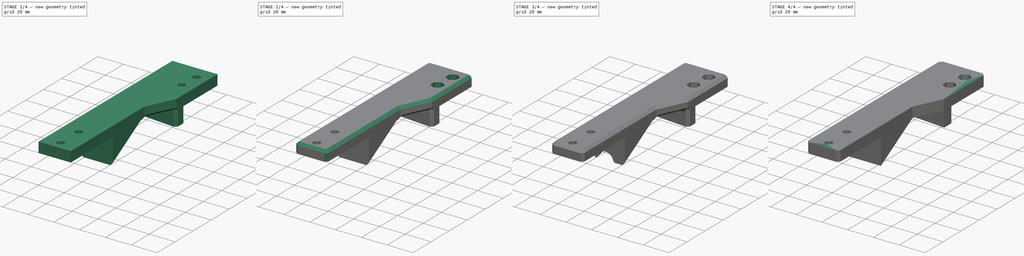
[diagram: build sequence overview — one tinted view per stage of 4, left to right]
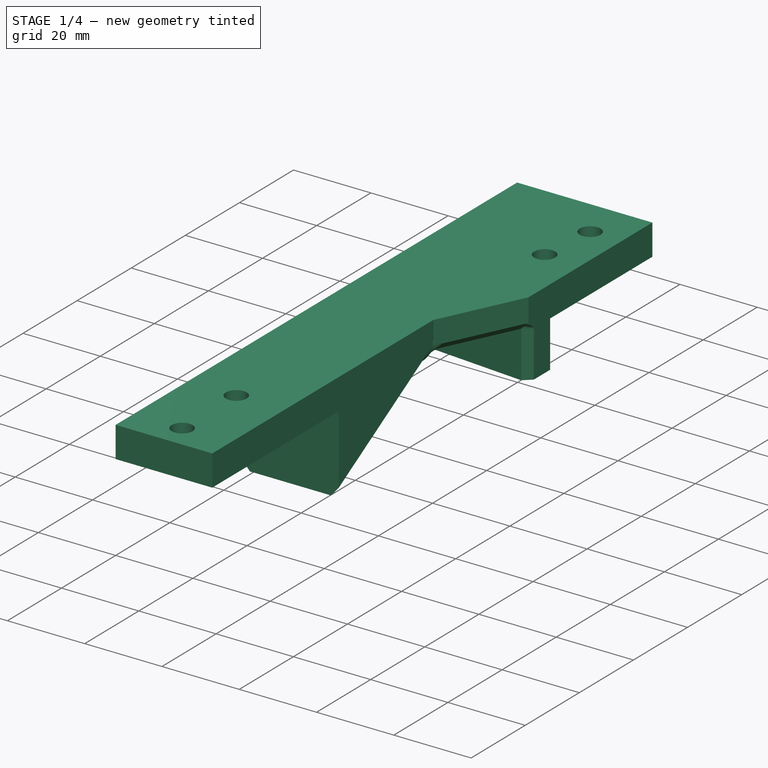
[diagram: stage 1 of 4 — iso view after this stage's code; geometry added in this stage tinted green]
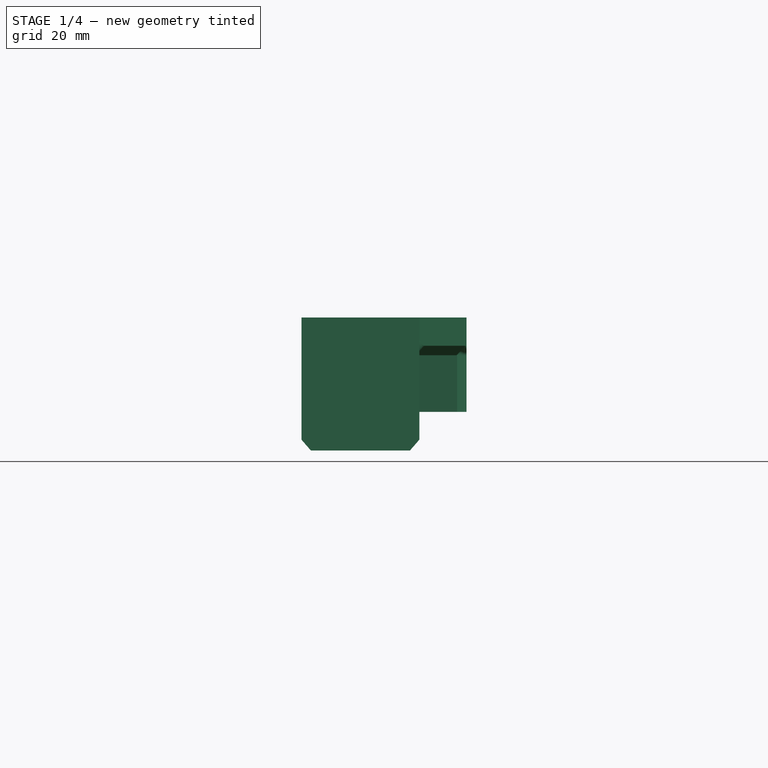
[diagram: stage 1 of 4 — front view after this stage's code; geometry added in this stage tinted green]
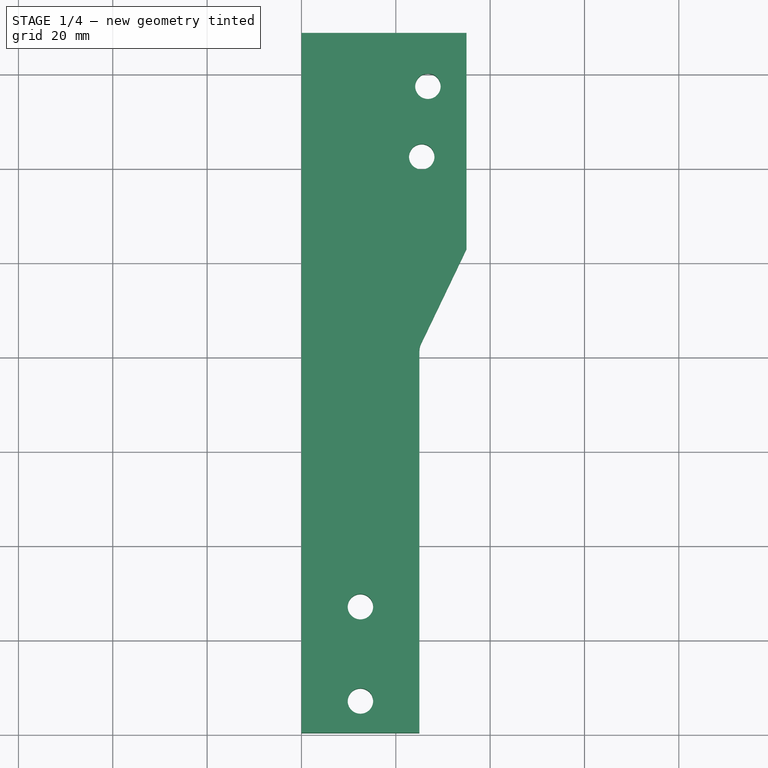
[diagram: stage 1 of 4 — top view after this stage's code; geometry added in this stage tinted green]
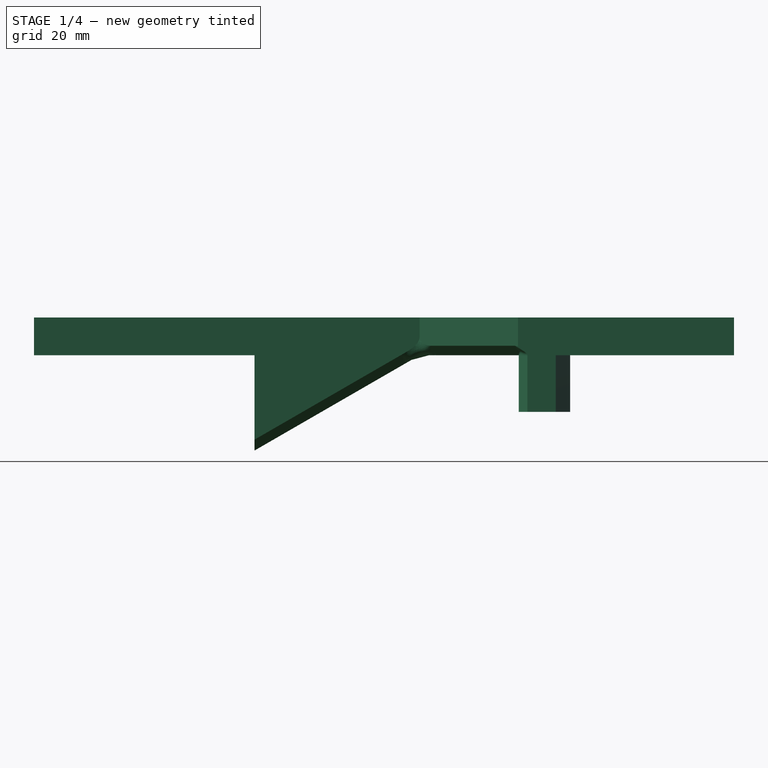
[diagram: stage 1 of 4 — right view after this stage's code; geometry added in this stage tinted green]
FCSTD DOCUMENT  (FreeCAD 0.19R24276 (Git))
Label: front-drag-chain-mount
License: All rights reserved
LicenseURL: http://en.wikipedia.org/wiki/All_rights_reserved
objects: Sketcher::SketchObject×7, PartDesign::Chamfer×7, PartDesign::Pocket×4, PartDesign::Pad×3, PartDesign::Plane×3, PartDesign::Body×1
note: 39 computed .brp shape members not serialized (recipe doc carries the construction recipe); baked Part::Feature solids carry a one-line shape summary decoded from their .brp

FEATURE [Sketcher::SketchObject] Sketch
  FullyConstrained = true
  MapMode = 5
  Support = -> [XY_Plane]
  sketch-geometry (18):
    g0: LineSegment StartX=0 StartY=0 StartZ=0 EndX=25 EndY=0 EndZ=0
    g1: LineSegment StartX=25 StartY=0 StartZ=0 EndX=25 EndY=81.75 EndZ=0
    g2: LineSegment StartX=25 StartY=81.75 StartZ=0 EndX=0 EndY=81.75 EndZ=0
    g3: LineSegment StartX=0 StartY=148.4 StartZ=0 EndX=0 EndY=0 EndZ=0
    g4: LineSegment StartX=0 StartY=148.4 StartZ=0 EndX=35 EndY=148.4 EndZ=0
    g5: LineSegment StartX=35 StartY=148.4 StartZ=0 EndX=35 EndY=102.6 EndZ=0
    g6: LineSegment StartX=35 StartY=102.6 StartZ=0 EndX=0 EndY=105.662 EndZ=0
    g7: LineSegment StartX=35 StartY=110.6 StartZ=0 EndX=0 EndY=113.662 EndZ=0
    g8: ArcOfCircle CenterX=51.7361 CenterY=81.75 CenterZ=0 NormalX=0 NormalY=0 NormalZ=1 AngleXU=0 Radius=26.7361 StartAngle=2.24718 EndAngle=3.14159
    g9: LineSegment StartX=0 StartY=46.75 StartZ=0 EndX=25 EndY=46.75 EndZ=0
    g10: Circle CenterX=12.5 CenterY=6.75 CenterZ=0 NormalX=0 NormalY=0 NormalZ=1 AngleXU=0 Radius=2.7
    g11: Circle CenterX=12.5 CenterY=26.75 CenterZ=0 NormalX=0 NormalY=0 NormalZ=1 AngleXU=0 Radius=2.7
    g12: GeomPoint X=12.5 Y=0 Z=0
    g13: Circle CenterX=25.5 CenterY=122.15 CenterZ=0 NormalX=0 NormalY=0 NormalZ=1 AngleXU=0 Radius=2.7
    g14: Circle CenterX=26.8073 CenterY=137.093 CenterZ=0 NormalX=0 NormalY=0 NormalZ=1 AngleXU=0 Radius=2.7
    g15: LineSegment StartX=25.5 StartY=122.15 StartZ=0 EndX=26.8073 EndY=137.093 EndZ=0
    g16: LineSegment StartX=25 StartY=81.75 StartZ=0 EndX=35 EndY=102.6 EndZ=0
    g17: LineSegment StartX=0 StartY=26.75 StartZ=0 EndX=25 EndY=26.75 EndZ=0
  constraints (54):
    c: Coincident(g0,g1)
    c: Coincident(g1,g2)
    c: Coincident(g3,g0)
    c: Horizontal(g0)
    c: Horizontal(g2)
    c: Vertical(g1)
    c: Coincident(g4,g3)
    c: Horizontal(g4)
    c: Coincident(g5,g4)
    c: Vertical(g5)
    c: DistanceX(g0,g0) = 25
    c: DistanceX(g3,g4) = 35
    c: DistanceY(g2,g3) = 66.65
    c: Coincident(g6,g5)
    c: PointOnObject(g6,g3)
    c: DistanceY(g5,g4) = 45.8
    c: Angle(g5,g6) = 1.48353
    c: PointOnObject(g7,g5)
    c: PointOnObject(g7,g3)
    c: Parallel(g7,g6)
    c: Distance(g7,g6) = 8
    c: Coincident(g8,g1)
    c: Coincident(g8,g5)
    c: Horizontal(g8,g1)
    c: Coincident(g0,g-1)
    c: PointOnObject(g9,g1)
    c: Horizontal(g9)
    c: DistanceY(g9,g1) = 35
    c: Vertical(g10,g11)
    c: Equal(g10,g11)
    c: Distance(g11,g10) = 20
    c: DistanceY(g0,g10) = 6.75
    c: Diameter(g10) = 5.4
    c: Symmetric(g0,g0,g12)
    c: Vertical(g12,g10)
    c: Equal(g13,g14)
    c: Distance(g14,g13) = 15
    c: Equal(g10,g13) = 5.4
    c: Coincident(g15,g13)
    c: Coincident(g15,g14)
    c: Perpendicular(g7,g15)
    c: DistanceY(g0,g2) = 81.75
    c: PointOnObject(g9,g3)
    c: PointOnObject(g2,g3)
    c: DistanceX(g0,g13) = 0.5
    c: DistanceY(g2,g13) = 40.4
    c: Vertical(g3)
    c: Coincident(g16,g1)
    c: Coincident(g16,g5)
    c: PointOnObject(g17,g3)
    c: PointOnObject(g17,g1)
    c: Horizontal(g17)
    c: DistanceY(g0,g17) = 26.75
    c: PointOnObject(g11,g17)
FEATURE [PartDesign::Pad] Pad  label="XY Profile "
  Direction = (1,1,1)
  Length = 8
  Length2 = 100
  Profile = -> Sketch
  Type = 0
FEATURE [Sketcher::SketchObject] Sketch001
  ExternalGeometry = -> [Sketch]
  FullyConstrained = true
  MapMode = 5
  Support = -> [XY_Plane]
  sketch-geometry (18):
    g0: LineSegment StartX=0 StartY=0 StartZ=0 EndX=25 EndY=0 EndZ=0
    g1: LineSegment StartX=25 StartY=0 StartZ=0 EndX=25 EndY=81.75 EndZ=0
    g2: LineSegment StartX=25 StartY=81.75 StartZ=0 EndX=0 EndY=81.75 EndZ=0
    g3: LineSegment StartX=0 StartY=148.4 StartZ=0 EndX=0 EndY=0 EndZ=0
    g4: LineSegment StartX=0 StartY=148.4 StartZ=0 EndX=35 EndY=148.4 EndZ=0
    g5: LineSegment StartX=35 StartY=148.4 StartZ=0 EndX=35 EndY=102.6 EndZ=0
    g6: LineSegment StartX=35 StartY=102.6 StartZ=0 EndX=0 EndY=105.662 EndZ=0
    g7: LineSegment StartX=35 StartY=110.6 StartZ=0 EndX=0 EndY=113.662 EndZ=0
    g8: ArcOfCircle CenterX=51.7361 CenterY=81.75 CenterZ=0 NormalX=0 NormalY=0 NormalZ=1 AngleXU=0 Radius=26.7361 StartAngle=2.24718 EndAngle=3.14159
    g9: LineSegment StartX=0 StartY=46.75 StartZ=0 EndX=25 EndY=46.75 EndZ=0
    g10: Circle CenterX=12.5 CenterY=10 CenterZ=0 NormalX=0 NormalY=0 NormalZ=1 AngleXU=0 Radius=2.7
    g11: Circle CenterX=12.5 CenterY=35 CenterZ=0 NormalX=0 NormalY=0 NormalZ=1 AngleXU=0 Radius=2.7
    g12: GeomPoint X=12.5 Y=0 Z=0
    g13: Circle CenterX=25.5 CenterY=122.15 CenterZ=0 NormalX=0 NormalY=0 NormalZ=1 AngleXU=0 Radius=2.7
    g14: Circle CenterX=26.8073 CenterY=137.093 CenterZ=0 NormalX=0 NormalY=0 NormalZ=1 AngleXU=0 Radius=2.7
    g15: LineSegment StartX=25.5 StartY=122.15 StartZ=0 EndX=26.8073 EndY=137.093 EndZ=0
    g16: LineSegment StartX=35 StartY=110.6 StartZ=0 EndX=35 EndY=102.6 EndZ=0
    g17: LineSegment StartX=0 StartY=105.662 StartZ=0 EndX=0 EndY=113.662 EndZ=0
  constraints (51):
    c: Coincident(g0,g1)
    c: Coincident(g1,g2)
    c: Coincident(g3,g0)
    c: Horizontal(g0)
    c: Horizontal(g2)
    c: Vertical(g1)
    c: Coincident(g4,g3)
    c: Horizontal(g4)
    c: Coincident(g5,g4)
    c: Vertical(g5)
    c: DistanceX(g0,g0) = 25
    c: DistanceX(g3,g4) = 35
    c: DistanceY(g2,g3) = 66.65
    c: Coincident(g6,g5)
    c: PointOnObject(g6,g3)
    c: DistanceY(g5,g4) = 45.8
    c: Angle(g5,g6) = 1.48353
    c: PointOnObject(g7,g5)
    c: PointOnObject(g7,g3)
    c: Parallel(g7,g6)
    c: Distance(g7,g6) = 8
    c: Coincident(g8,g1)
    c: Coincident(g8,g5)
    c: Horizontal(g8,g1)
    c: Coincident(g0,g-1)
    c: PointOnObject(g9,g1)
    c: Horizontal(g9)
    c: DistanceY(g9,g1) = 35
    c: Vertical(g10,g11)
    c: Equal(g10,g11)
    c: Distance(g11,g10) = 25
    c: DistanceY(g0,g10) = 10
    c: Diameter(g10) = 5.4
    c: Symmetric(g0,g0,g12)
    c: Vertical(g12,g10)
    c: Equal(g13,g14)
    c: Distance(g14,g13) = 15
    c: Equal(g10,g13) = 5.4
    c: Coincident(g15,g13)
    c: Coincident(g15,g14)
    c: Perpendicular(g7,g15)
    c: DistanceY(g0,g2) = 81.75
    c: PointOnObject(g9,g3)
    c: PointOnObject(g2,g3)
    c: DistanceX(g0,g13) = 0.5
    c: DistanceY(g2,g13) = 40.4
    c: Vertical(g3)
    c: Coincident(g16,g7)
    c: Coincident(g16,g6)
    c: Coincident(g17,g6)
    c: Coincident(g17,g7)
FEATURE [PartDesign::Pad] Pad001  label="Drag Chain Mount Resting Support"
  BaseFeature = -> Pad
  Direction = (1,1,1)
  Length = 12
  Length2 = 100
  Profile = -> Sketch001
  Reversed = true
  Type = 0
FEATURE [Sketcher::SketchObject] Sketch002
  FullyConstrained = true
  MapMode = 5
  Support = -> [XY_Plane]
  sketch-geometry (18):
    g0: LineSegment StartX=0 StartY=0 StartZ=0 EndX=25 EndY=0 EndZ=0
    g1: LineSegment StartX=25 StartY=0 StartZ=0 EndX=25 EndY=81.75 EndZ=0
    g2: LineSegment StartX=25 StartY=81.75 StartZ=0 EndX=0 EndY=81.75 EndZ=0
    g3: LineSegment StartX=0 StartY=148.4 StartZ=0 EndX=0 EndY=0 EndZ=0
    g4: LineSegment StartX=0 StartY=148.4 StartZ=0 EndX=35 EndY=148.4 EndZ=0
    g5: LineSegment StartX=35 StartY=148.4 StartZ=0 EndX=35 EndY=102.6 EndZ=0
    g6: LineSegment StartX=35 StartY=102.6 StartZ=0 EndX=0 EndY=105.662 EndZ=0
    g7: LineSegment StartX=35 StartY=110.6 StartZ=0 EndX=0 EndY=113.662 EndZ=0
    g8: ArcOfCircle CenterX=51.7361 CenterY=81.75 CenterZ=0 NormalX=0 NormalY=0 NormalZ=1 AngleXU=0 Radius=26.7361 StartAngle=2.24718 EndAngle=3.14159
    g9: LineSegment StartX=0 StartY=46.75 StartZ=0 EndX=25 EndY=46.75 EndZ=0
    g10: Circle CenterX=12.5 CenterY=10 CenterZ=0 NormalX=0 NormalY=0 NormalZ=1 AngleXU=0 Radius=2.7
    g11: Circle CenterX=12.5 CenterY=35 CenterZ=0 NormalX=0 NormalY=0 NormalZ=1 AngleXU=0 Radius=2.7
    g12: GeomPoint X=12.5 Y=0 Z=0
    g13: Circle CenterX=25.5 CenterY=122.15 CenterZ=0 NormalX=0 NormalY=0 NormalZ=1 AngleXU=0 Radius=2.7
    g14: Circle CenterX=26.8073 CenterY=137.093 CenterZ=0 NormalX=0 NormalY=0 NormalZ=1 AngleXU=0 Radius=2.7
    g15: LineSegment StartX=25.5 StartY=122.15 StartZ=0 EndX=26.8073 EndY=137.093 EndZ=0
    g16: LineSegment StartX=35 StartY=110.6 StartZ=0 EndX=35 EndY=102.6 EndZ=0
    g17: LineSegment StartX=0 StartY=105.662 StartZ=0 EndX=0 EndY=113.662 EndZ=0
  constraints (51):
    c: Coincident(g0,g1)
    c: Coincident(g1,g2)
    c: Coincident(g3,g0)
    c: Horizontal(g0)
    c: Horizontal(g2)
    c: Vertical(g1)
    c: Coincident(g4,g3)
    c: Horizontal(g4)
    c: Coincident(g5,g4)
    c: Vertical(g5)
    c: DistanceX(g0,g0) = 25
    c: DistanceX(g3,g4) = 35
    c: DistanceY(g2,g3) = 66.65
    c: Coincident(g6,g5)
    c: PointOnObject(g6,g3)
    c: DistanceY(g5,g4) = 45.8
    c: Angle(g5,g6) = 1.48353
    c: PointOnObject(g7,g5)
    c: PointOnObject(g7,g3)
    c: Parallel(g7,g6)
    c: Distance(g7,g6) = 8
    c: Coincident(g8,g1)
    c: Coincident(g8,g5)
    c: Horizontal(g8,g1)
    c: Coincident(g0,g-1)
    c: PointOnObject(g9,g1)
    c: Horizontal(g9)
    c: DistanceY(g9,g1) = 35
    c: Vertical(g10,g11)
    c: Equal(g10,g11)
    c: Distance(g11,g10) = 25
    c: DistanceY(g0,g10) = 10
    c: Diameter(g10) = 5.4
    c: Symmetric(g0,g0,g12)
    c: Vertical(g12,g10)
    c: Equal(g13,g14)
    c: Distance(g14,g13) = 15
    c: Equal(g10,g13) = 5.4
    c: Coincident(g15,g13)
    c: Coincident(g15,g14)
    c: Perpendicular(g7,g15)
    c: DistanceY(g0,g2) = 81.75
    c: PointOnObject(g9,g3)
    c: PointOnObject(g2,g3)
    c: DistanceX(g0,g13) = 0.5
    c: DistanceY(g2,g13) = 40.4
    c: Vertical(g3)
    c: Coincident(g16,g7)
    c: Coincident(g16,g6)
    c: Coincident(g17,g6)
    c: Coincident(g17,g7)
FEATURE [PartDesign::Plane] DatumPlane
  Length = 60
  MapMode = 2
  Placement = pos=(0,0,0) rot=(0.57735,0.57735,0.57735;2.0944rad)
  ResizeMode = 0
  Support = -> [YZ_Plane]
  Width = 60
FEATURE [Sketcher::SketchObject] Sketch003
  ExternalGeometry = -> [Sketch002]
  FullyConstrained = true
  MapMode = 5
  Placement = pos=(0,0,0) rot=(0.57735,0.57735,0.57735;2.0944rad)
  Support = -> [YZ_Plane]
  sketch-geometry (3):
    g0: LineSegment StartX=46.75 StartY=1.3e-14 StartZ=0 EndX=46.75 EndY=-20.2073 EndZ=0
    g1: LineSegment StartX=46.75 StartY=-20.2073 StartZ=0 EndX=81.75 EndY=2.13e-14 EndZ=0
    g2: LineSegment StartX=46.75 StartY=1.3e-14 StartZ=0 EndX=81.75 EndY=2.13e-14 EndZ=0
  constraints (7):
    c: Vertical(g0)
    c: Coincident(g1,g0)
    c: Coincident(g1,g-4)
    c: Coincident(g0,g-3)
    c: Angle(g-1,g1) = 0.523599
    c: Coincident(g2,g0)
    c: Coincident(g2,g1)
FEATURE [PartDesign::Pad] Pad002  label="Top-Side Leg Support Pad"
  BaseFeature = -> Pad001
  Direction = (1,1,1)
  Length = 25
  Length2 = 100
  Profile = -> Sketch003
  Type = 0
FEATURE [PartDesign::Chamfer] Chamfer001
  Angle = 45
  Base = -> Pad002 [Edge39,Edge36,Edge8,Edge42,Edge51,Edge14,Edge37]
  BaseFeature = -> Pad002
  ChamferType = 0
  FlipDirection = false
  Size = 2
  Size2 = 1
  SupportTransform = false
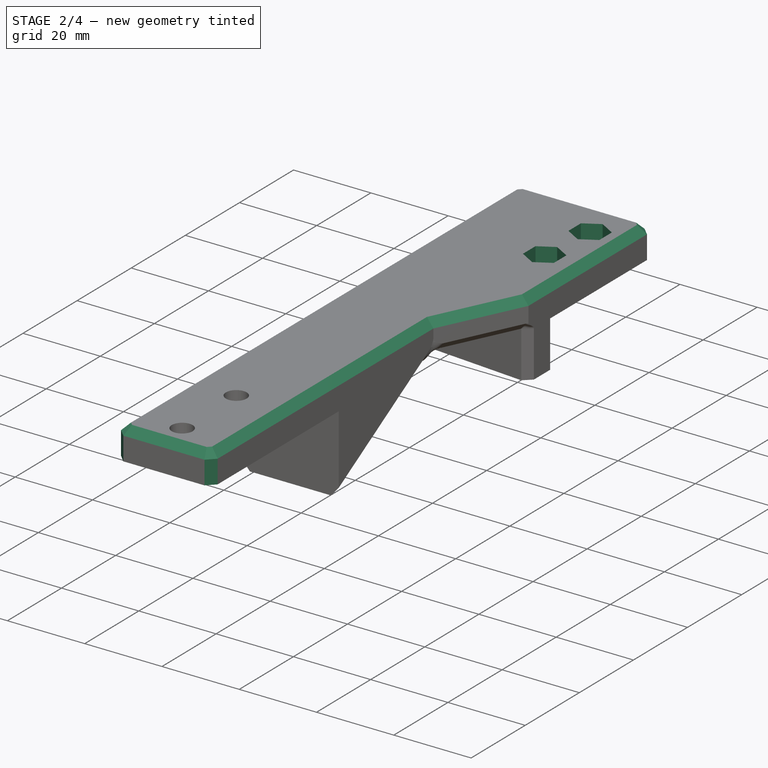
[diagram: stage 2 of 4 — iso view after this stage's code; geometry added in this stage tinted green]
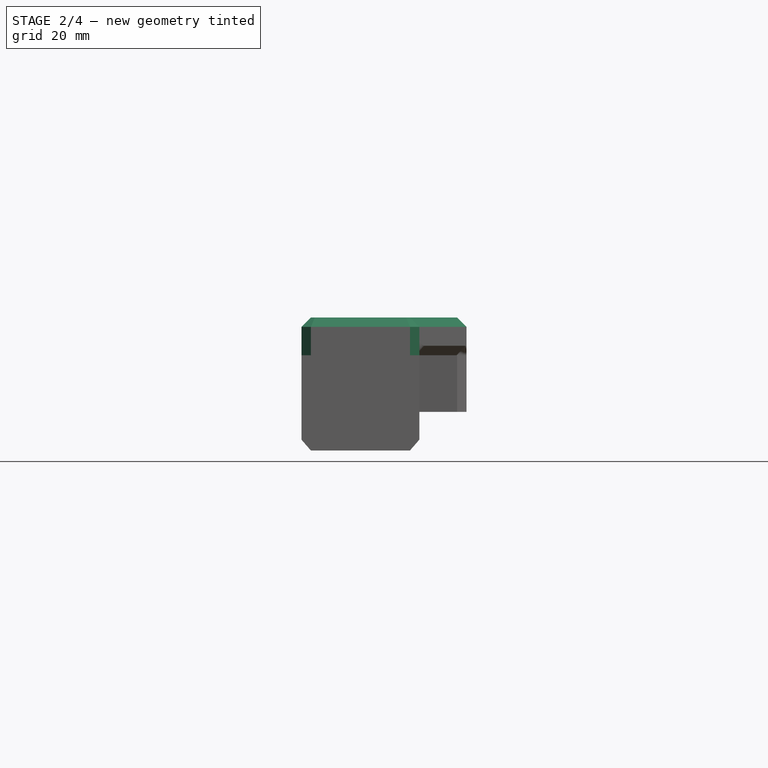
[diagram: stage 2 of 4 — front view after this stage's code; geometry added in this stage tinted green]
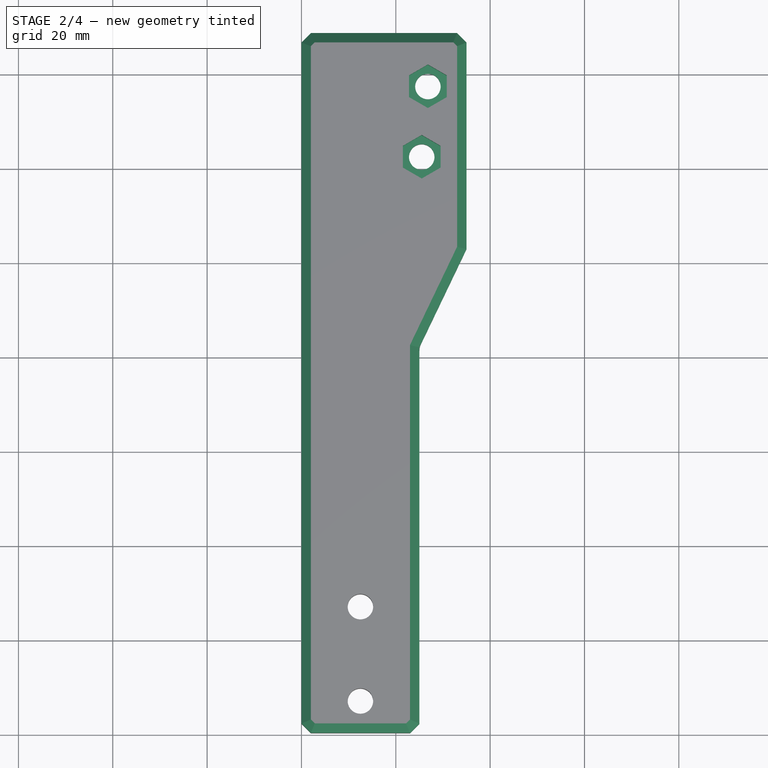
[diagram: stage 2 of 4 — top view after this stage's code; geometry added in this stage tinted green]
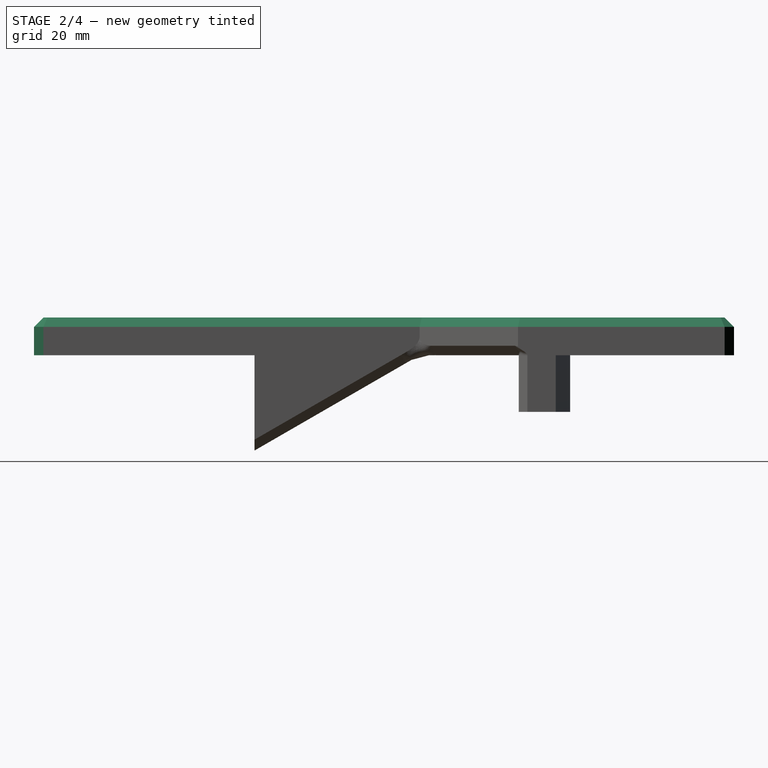
[diagram: stage 2 of 4 — right view after this stage's code; geometry added in this stage tinted green]
FEATURE [PartDesign::Chamfer] Chamfer002
  Angle = 45
  Base = -> Chamfer001 [Edge41,Edge24,Edge5,Edge9,Edge40]
  BaseFeature = -> Chamfer001
  ChamferType = 0
  FlipDirection = false
  Size = 2
  Size2 = 1
  SupportTransform = false
FEATURE [PartDesign::Pocket] Pocket001  label="M5 Hex Nut Recess001"
  BaseFeature = -> Chamfer002
  Length = 4
  Length2 = 100
  Profile = -> Sketch004
  Type = 0
FEATURE [PartDesign::Chamfer] Chamfer003
  Angle = 45
  Base = -> Pocket001 [Edge4,Edge24,Edge26,Edge28,Edge30,Edge29,Edge27,Edge31,Edge25,Edge21]
  BaseFeature = -> Pocket001
  ChamferType = 0
  FlipDirection = false
  Size = 2
  Size2 = 1
  SupportTransform = false
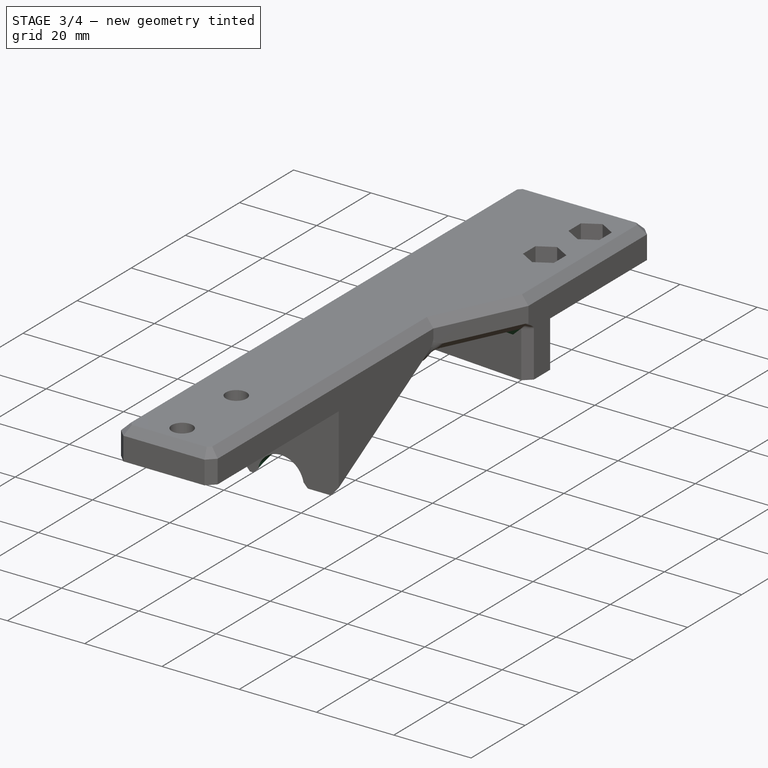
[diagram: stage 3 of 4 — iso view after this stage's code; geometry added in this stage tinted green]
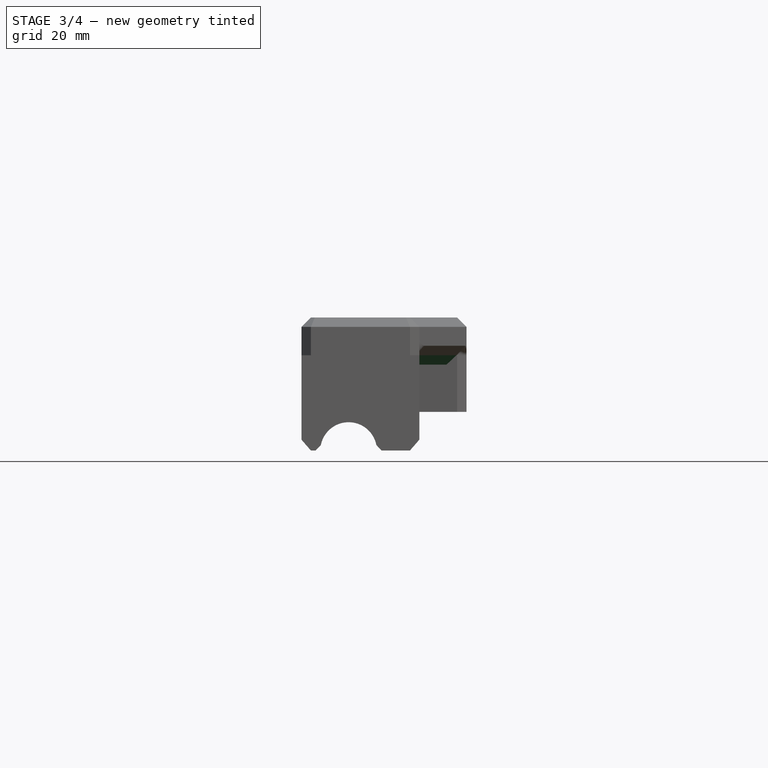
[diagram: stage 3 of 4 — front view after this stage's code; geometry added in this stage tinted green]
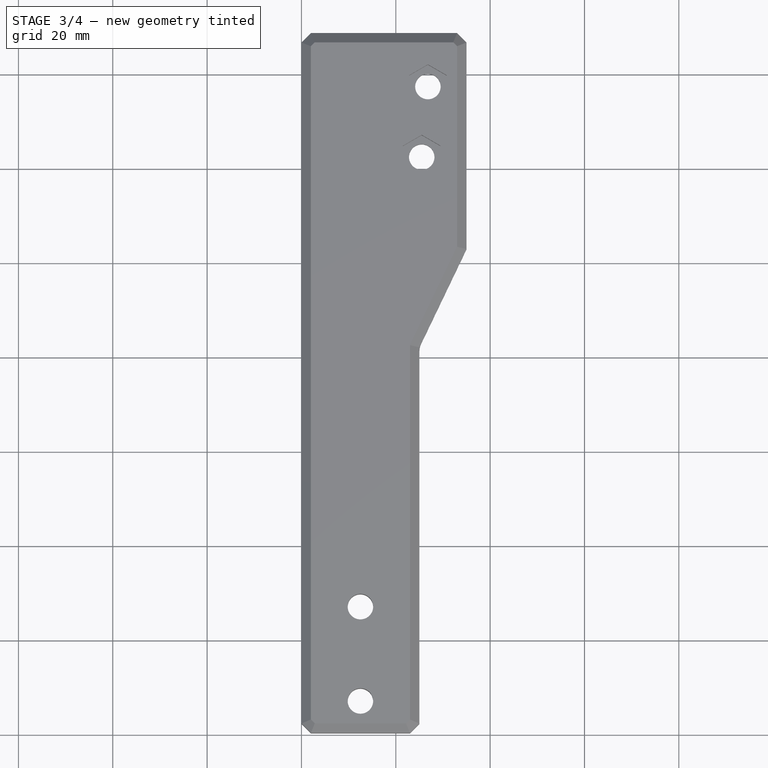
[diagram: stage 3 of 4 — top view after this stage's code; geometry added in this stage tinted green]
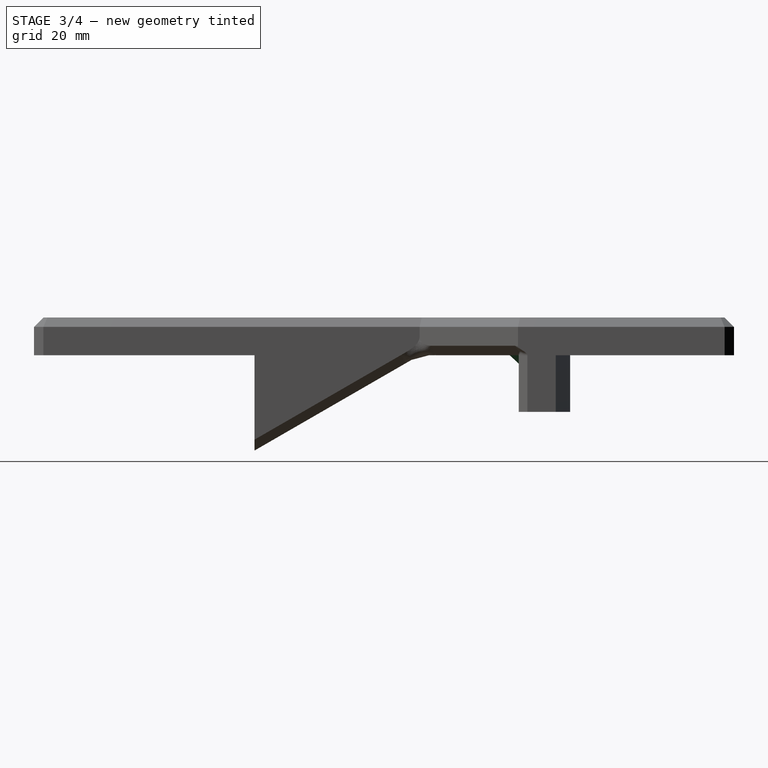
[diagram: stage 3 of 4 — right view after this stage's code; geometry added in this stage tinted green]
FEATURE [PartDesign::Chamfer] Chamfer004
  Angle = 45
  Base = -> Chamfer003 [Edge113]
  BaseFeature = -> Chamfer003
  ChamferType = 0
  FlipDirection = false
  Size = 2
  Size2 = 1
  SupportTransform = false
FEATURE [Sketcher::SketchObject] Sketch005
  ExternalGeometry = -> [Chamfer004]
  FullyConstrained = true
  MapMode = 5
  Placement = pos=(1.03e-14,46.75,-1.03e-14) rot=(1,0,0;1.5708rad)
  Support = -> [Chamfer004]
  sketch-geometry (2):
    g0: Circle CenterX=10 CenterY=-20.2073 CenterZ=0 NormalX=0 NormalY=0 NormalZ=1 AngleXU=0 Radius=6
    g1: GeomPoint X=4 Y=-20.2073 Z=0
  constraints (5):
    c: PointOnObject(g0,g-3)
    c: Diameter(g0) = 12
    c: PointOnObject(g1,g-3)
    c: PointOnObject(g1,g0)
    c: DistanceX(g-4,g1) = 4
FEATURE [PartDesign::Pocket] Pocket002
  BaseFeature = -> Chamfer004
  Length = 15
  Length2 = 100
  Profile = -> Sketch005
  Type = 0
FEATURE [PartDesign::Chamfer] Chamfer005
  Angle = 45
  Base = -> Pocket002 [Edge86]
  BaseFeature = -> Pocket002
  ChamferType = 0
  FlipDirection = false
  Size = 1
  Size2 = 1
  SupportTransform = false
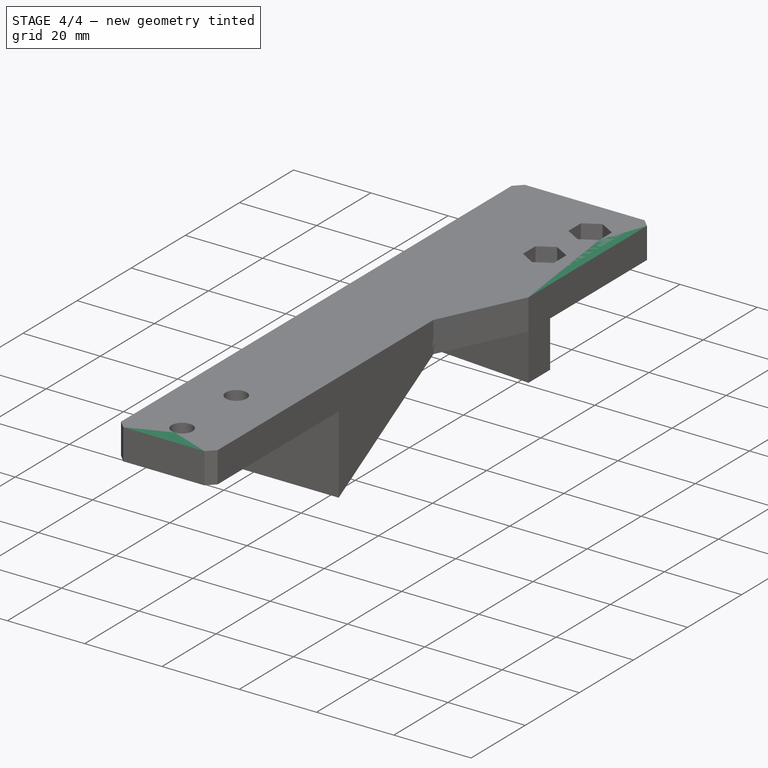
[diagram: stage 4 of 4 — iso view after this stage's code; geometry added in this stage tinted green]
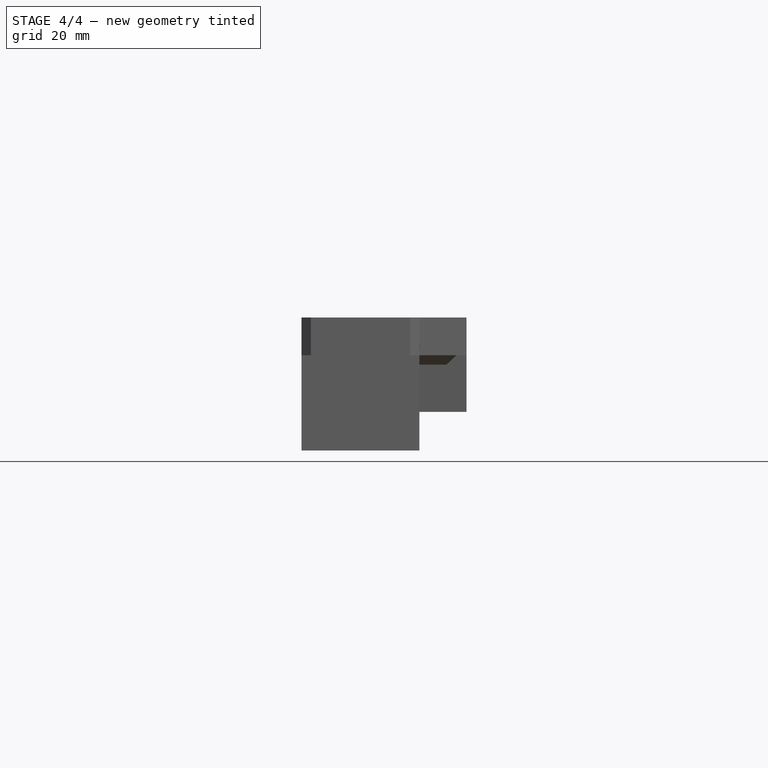
[diagram: stage 4 of 4 — front view after this stage's code; geometry added in this stage tinted green]
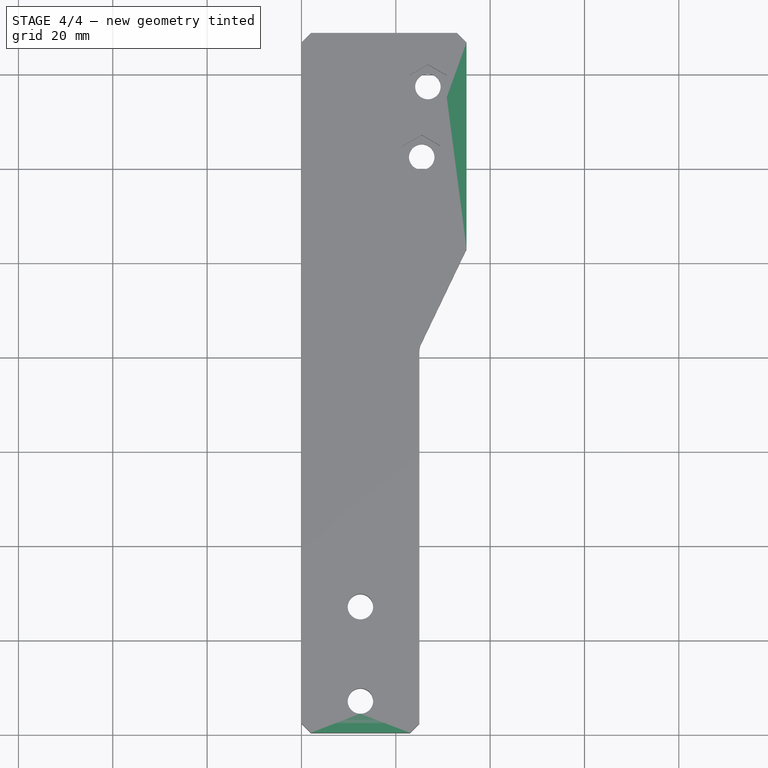
[diagram: stage 4 of 4 — top view after this stage's code; geometry added in this stage tinted green]
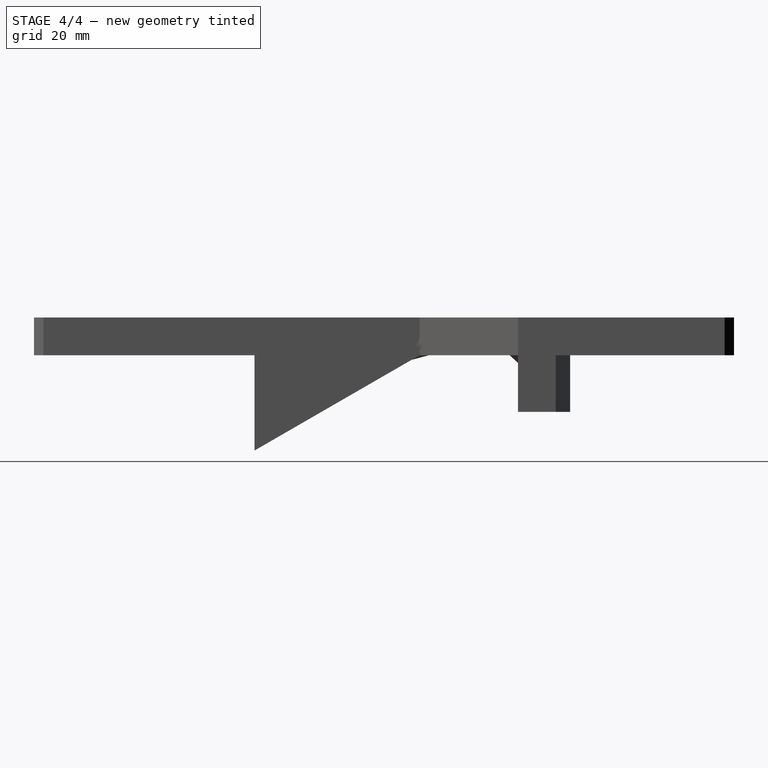
[diagram: stage 4 of 4 — right view after this stage's code; geometry added in this stage tinted green]
FEATURE [PartDesign::Plane] DatumPlane001
  Length = 60
  MapMode = 5
  Placement = pos=(0,0,8) rot=(0,0,1;0rad)
  ResizeMode = 0
  Support = -> [Pad002]
  Width = 60
FEATURE [Sketcher::SketchObject] Sketch004
  ExternalGeometry = -> [Pad002]
  FullyConstrained = true
  MapMode = 5
  Placement = pos=(0,0,8) rot=(0,0,1;0rad)
  Support = -> [DatumPlane001]
  sketch-geometry (14):
    g0: LineSegment StartX=29.5 StartY=124.459 StartZ=0 EndX=25.5 EndY=126.769 EndZ=0
    g1: LineSegment StartX=25.5 StartY=126.769 StartZ=0 EndX=21.5 EndY=124.459 EndZ=0
    g2: LineSegment StartX=21.5 StartY=124.459 StartZ=0 EndX=21.5 EndY=119.841 EndZ=0
    g3: LineSegment StartX=21.5 StartY=119.841 StartZ=0 EndX=25.5 EndY=117.531 EndZ=0
    g4: LineSegment StartX=25.5 StartY=117.531 StartZ=0 EndX=29.5 EndY=119.841 EndZ=0
    g5: LineSegment StartX=29.5 StartY=119.841 StartZ=0 EndX=29.5 EndY=124.459 EndZ=0
    g6: Circle CenterX=25.5 CenterY=122.15 CenterZ=0 NormalX=0 NormalY=0 NormalZ=1 AngleXU=0 Radius=4.6188
    g7: LineSegment StartX=30.8073 StartY=139.402 StartZ=0 EndX=26.8073 EndY=141.712 EndZ=0
    g8: LineSegment StartX=26.8073 StartY=141.712 StartZ=0 EndX=22.8073 EndY=139.402 EndZ=0
    g9: LineSegment StartX=22.8073 StartY=139.402 StartZ=0 EndX=22.8073 EndY=134.784 EndZ=0
    g10: LineSegment StartX=22.8073 StartY=134.784 StartZ=0 EndX=26.8073 EndY=132.474 EndZ=0
    g11: LineSegment StartX=26.8073 StartY=132.474 StartZ=0 EndX=30.8073 EndY=134.784 EndZ=0
    g12: LineSegment StartX=30.8073 StartY=134.784 StartZ=0 EndX=30.8073 EndY=139.402 EndZ=0
    g13: Circle CenterX=26.8073 CenterY=137.093 CenterZ=0 NormalX=0 NormalY=0 NormalZ=1 AngleXU=0 Radius=4.6188
  constraints (32):
    c: Coincident(g0,g1)
    c: Coincident(g1,g2)
    c: Coincident(g2,g3)
    c: Coincident(g3,g4)
    c: Coincident(g4,g5)
    c: Coincident(g5,g0)
    c: Equal(g0, g1-g5) x5
    c: PointOnObject(g0,g6)
    c: PointOnObject(g1,g6)
    c: PointOnObject(g2,g6)
    c: PointOnObject(g3,g6)
    c: PointOnObject(g4,g6)
    c: PointOnObject(g5,g6)
    c: Coincident(g6,g-3)
    c: Distance(g1,g0) = 8
    c: Vertical(g5)
    c: Coincident(g7,g8)
    c: Coincident(g8,g9)
    c: Coincident(g9,g10)
    c: Coincident(g10,g11)
    c: Coincident(g11,g12)
    c: Coincident(g12,g7)
    c: Equal(g7, g8-g12) x5
    c: PointOnObject(g7,g13)
    c: PointOnObject(g8,g13)
    c: PointOnObject(g9,g13)
    c: PointOnObject(g10,g13)
    c: PointOnObject(g11,g13)
    c: PointOnObject(g12,g13)
    c: Distance(g8,g7) = 8
    c: Vertical(g12)
    c: Coincident(g13,g-4)
FEATURE [PartDesign::Pocket] Pocket  label="M5 Hex Nut Recess"
  BaseFeature = -> Pad002
  Length = 4
  Length2 = 100
  Profile = -> Sketch004
  Type = 0
FEATURE [PartDesign::Chamfer] Chamfer
  Angle = 45
  Base = -> Pocket [Edge36,Edge5,Edge2,Edge1]
  BaseFeature = -> Pocket
  ChamferType = 0
  FlipDirection = false
  Size = 2
  Size2 = 1
  SupportTransform = false
FEATURE [PartDesign::Plane] DatumPlane002  label="PrintPlane"
  Length = 60
  MapMode = 5
  Placement = pos=(0,0,8) rot=(0,0,1;0rad)
  ResizeMode = 0
  Support = -> [Chamfer005]
  Width = 60
FEATURE [Sketcher::SketchObject] Sketch006
  FullyConstrained = true
  MapMode = 5
  Placement = pos=(0,0,8) rot=(0,0,1;0rad)
  Support = -> [DatumPlane002]
  sketch-geometry (4):
    g0: LineSegment StartX=-9 StartY=41.4 StartZ=0 EndX=3 EndY=41.4 EndZ=0
    g1: LineSegment StartX=3 StartY=41.4 StartZ=0 EndX=3 EndY=10 EndZ=0
    g2: LineSegment StartX=3 StartY=10 StartZ=0 EndX=-9 EndY=10 EndZ=0
    g3: LineSegment StartX=-9 StartY=10 StartZ=0 EndX=-9 EndY=41.4 EndZ=0
  constraints (12):
    c: Coincident(g0,g1)
    c: Coincident(g1,g2)
    c: Coincident(g2,g3)
    c: Coincident(g3,g0)
    c: Horizontal(g0)
    c: Horizontal(g2)
    c: Vertical(g1)
    c: Vertical(g3)
    c: DistanceY(g3,g3) = 31.4
    c: DistanceY(g-1,g1) = 10
    c: DistanceX(g-1,g0) = 3
    c: DistanceX(g0,g0) = 12
FEATURE [PartDesign::Pocket] Pocket003
  BaseFeature = -> Chamfer005
  Length = 5
  Length2 = 100
  Profile = -> Sketch006
  Type = 1
FEATURE [PartDesign::Chamfer] Chamfer006
  Angle = 45
  Base = -> Pocket003 [Edge80,Edge81,Edge52,Edge74,Edge76,Edge75,Edge78]
  BaseFeature = -> Pocket003
  ChamferType = 0
  FlipDirection = false
  Size = 2
  Size2 = 1
  SupportTransform = false
FEATURE [PartDesign::Body] Body
  Group = -> [Sketch,Pad,Sketch001,Pad001,Sketch002,DatumPlane,Sketch003,Pad002,DatumPlane001,Sketch004,Pocket,Chamfer,Chamfer001,Chamfer002,Pocket001,Chamfer003,Chamfer004,Sketch005,Pocket002,Chamfer005,DatumPlane002,Sketch006,Pocket003,Chamfer006]
  Origin = -> Origin
  Tip = -> Chamfer006
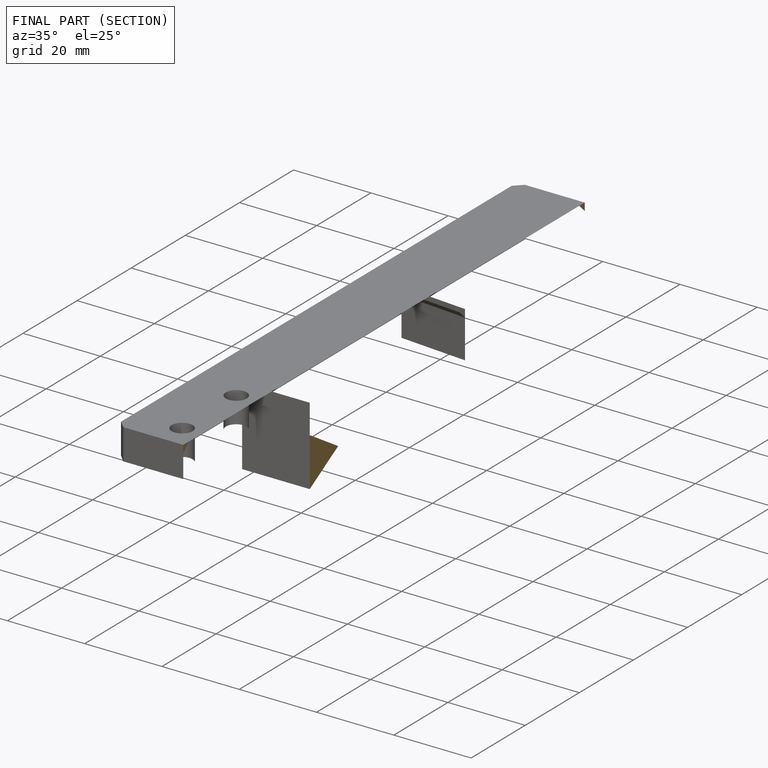
[diagram: finished part — half-section view (interior)]
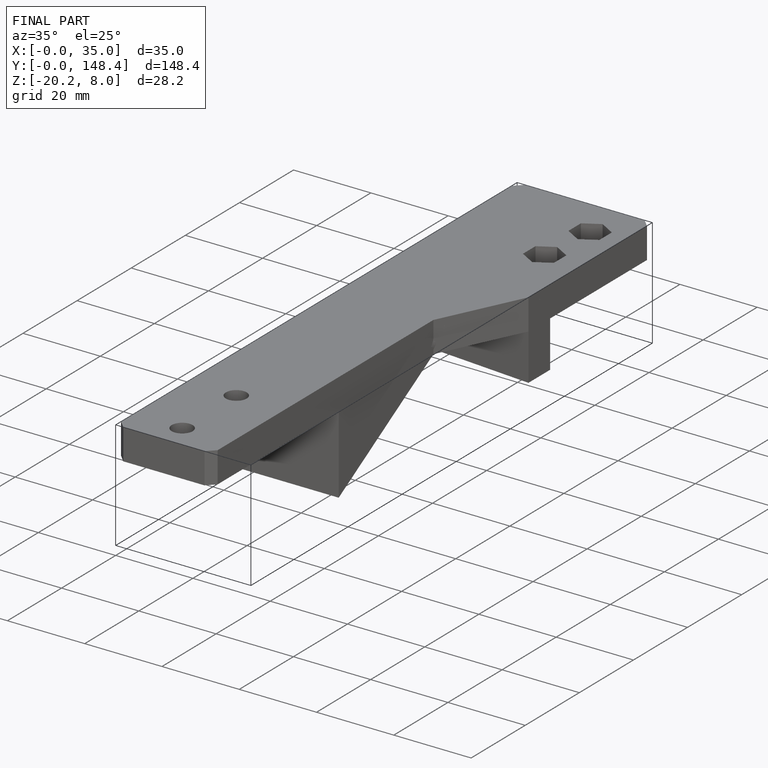
[diagram: finished part — iso view with bounding-box wireframe]
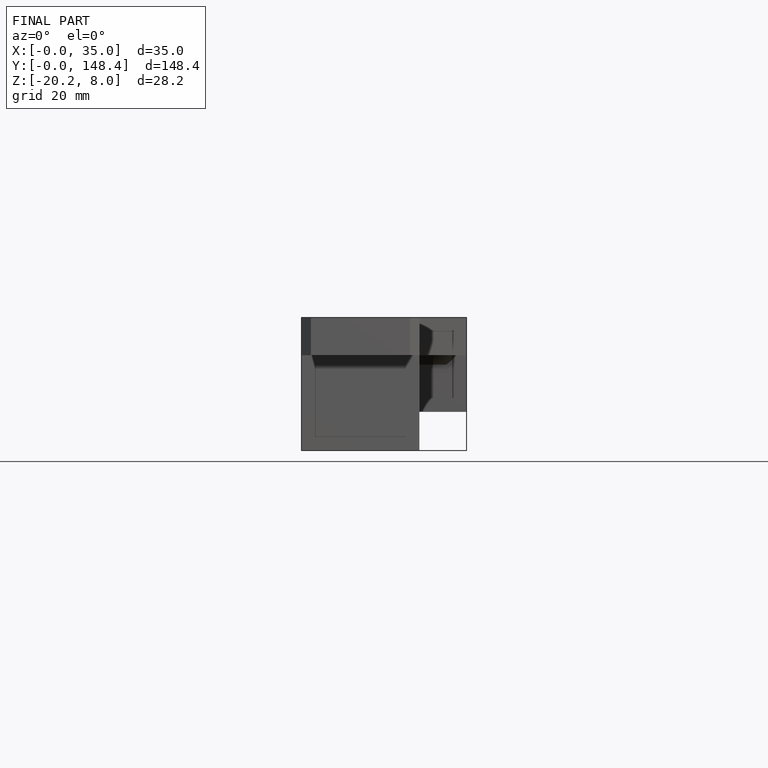
[diagram: finished part — front view with bounding-box wireframe]
